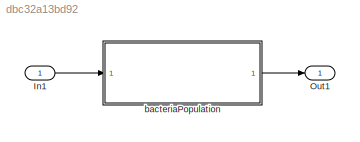
MODEL slx_dbc32a13bd92
KIND model
CONFIG AbsTol = auto
CONFIG EnableMultiTasking = off
CONFIG FixedStep = 1
CONFIG MaxStep = auto
CONFIG MinStep = auto
CONFIG RelTol = 1e-3
CONFIG SampleTimeConstraint = Unconstrained
CONFIG Solver = FixedStepDiscrete
CONFIG SolverName = FixedStepDiscrete
CONFIG StartTime = 0.0
CONFIG StopTime = 10.0
WORKSPACE source: MAT-file member
WORKSPACE MCOS: class17 (value not decoded)
BLOCK [Inport] In1
  IconDisplay = Port number
BLOCK [Outport] Out1
  IconDisplay = Port number
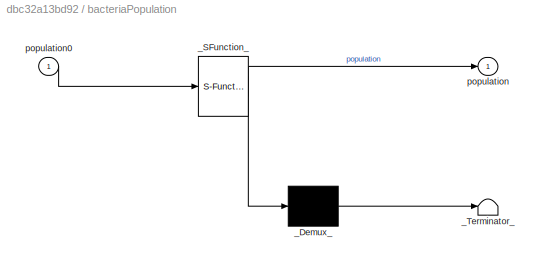
BLOCK [SubSystem] bacteriaPopulation
  ErrorFcn = Stateflow.Translate.translate
  PermitHierarchicalResolution = ExplicitOnly
  Ports = [1, 1]
  RequestExecContextInheritance = off
  SFBlockType = Chart
  TreatAsAtomicUnit = on
  Variant = off
BLOCK [Demux] bacteriaPopulation/_Demux_
  Outputs = 1
  Ports = [1, 1]
BLOCK [S-Function] bacteriaPopulation/_SFunction_
  EnableBusSupport = on
  FunctionName = sf_sfun
  PortCounts = [1 2]
  Ports = [1, 2]
  SFcnIsStateOwnerBlock = off
  SFunctionDeploymentMode = off
  Tag = Stateflow S-Function flowchart2 3
BLOCK [Terminator] bacteriaPopulation/_Terminator_
BLOCK [Outport] bacteriaPopulation/population
  IconDisplay = Port number
BLOCK [Inport] bacteriaPopulation/population0
  IconDisplay = Port number
LINE In1:1 -> bacteriaPopulation:1
LINE bacteriaPopulation:1 -> Out1:1
CHART bacteriaPopulation states=2 transitions=11
  STATE_LABEL 'start\nentry:\nprePopulation = population0;\npopulation = population0;\n'
  STATE_LABEL 'state\n'
  STATE_LABEL '[ population < 32.0 ]{prePopulation = population; population = population*2;}'
  STATE_LABEL '[ population > 32.0 ]{prePopulation = population; ...\npopulation = population/2;}'
  STATE_LABEL "{disp('efefe')}"
